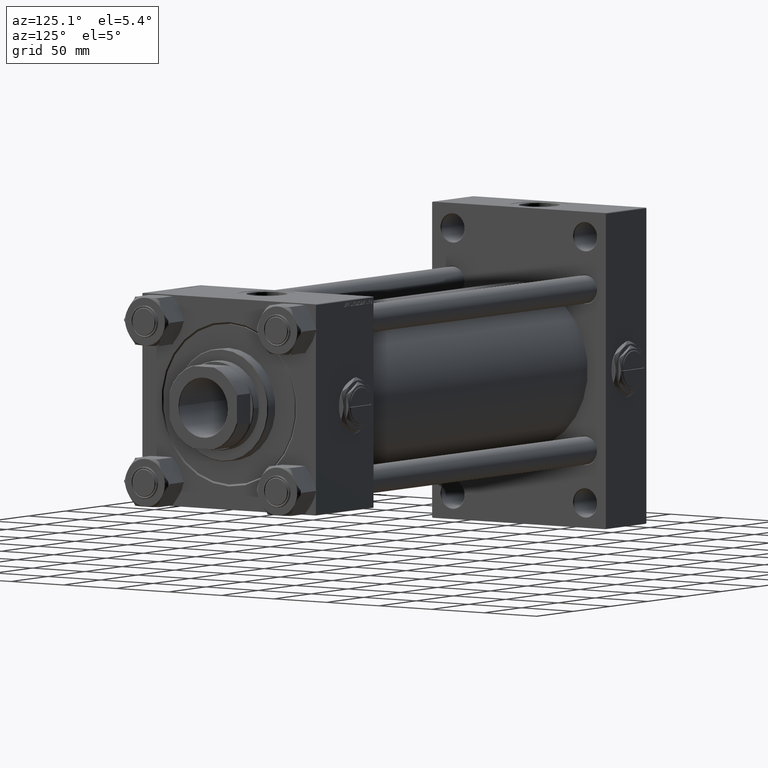
[diagram: clean part render]
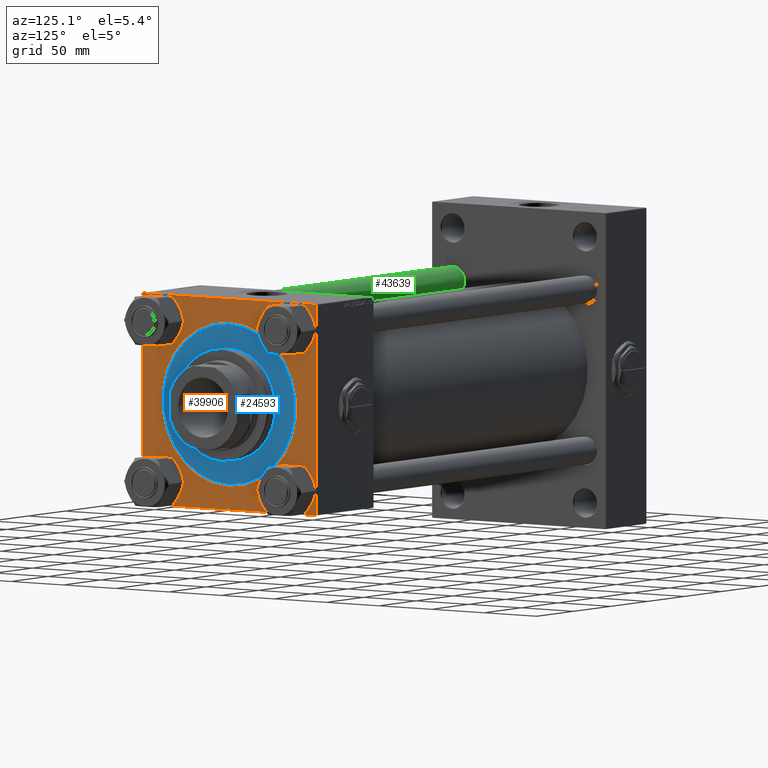
[diagram: same view with three faces highlighted in distinct colors, each labeled with its STEP entity id]
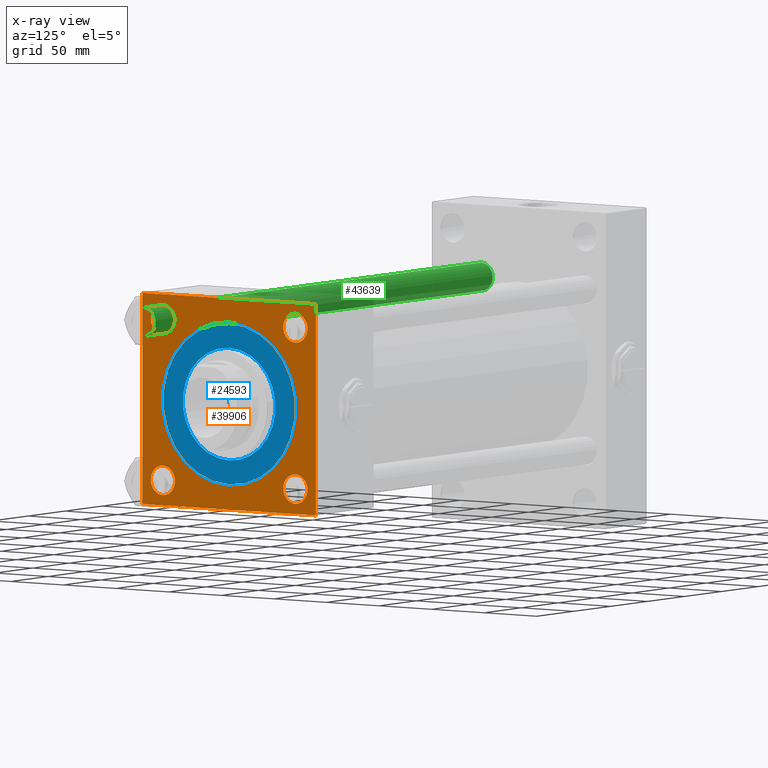
[diagram: x-ray of the same camera — body ghosted, the three highlighted faces saturated]
A machine part, auxiliary view with three faces highlighted in distinct colors.
The next image is the same camera in x-ray (body ghosted, the three faces saturated) — at least one of them is partly hidden behind the body in this view.
Their STEP definitions:

[orange] entity #39906 — the highlighted planar face has unit normal (-1, 0, 0).
#43 = ORIENTED_EDGE ( 'NONE', *, *, #2647, .T. ) ;
#361 = EDGE_CURVE ( 'NONE', #9763, #11775, #30050, .T. ) ;
#590 = ORIENTED_EDGE ( 'NONE', *, *, #41824, .T. ) ;
#904 = VERTEX_POINT ( 'NONE', #26787 ) ;
#1397 = CARTESIAN_POINT ( 'NONE',  ( 447.0000000000000000, 62.95000000000000284, -51.44999999999983231 ) ) ;
#1517 = ORIENTED_EDGE ( 'NONE', *, *, #34671, .T. ) ;
#1520 = DIRECTION ( 'NONE',  ( -1.000000000000000000, -0.000000000000000000, 0.000000000000000000 ) ) ;
#1842 = DIRECTION ( 'NONE',  ( 0.000000000000000000, 0.000000000000000000, 1.000000000000000000 ) ) ;
#1884 = CARTESIAN_POINT ( 'NONE',  ( 447.0000000000000000, 62.95000000000000284, 74.45000000000018758 ) ) ;
#2180 = VERTEX_POINT ( 'NONE', #30304 ) ;
#2388 = CARTESIAN_POINT ( 'NONE',  ( 447.0000000000000000, 0.000000000000000000, 0.000000000000000000 ) ) ;
#2647 = EDGE_CURVE ( 'NONE', #38852, #27404, #30958, .T. ) ;
#3617 = CARTESIAN_POINT ( 'NONE',  ( 447.0000000000000000, 0.000000000000000000, -64.25000000000014211 ) ) ;
#3846 = EDGE_CURVE ( 'NONE', #2180, #51308, #22116, .T. ) ;
#3946 = VERTEX_POINT ( 'NONE', #26381 ) ;
#4507 = CARTESIAN_POINT ( 'NONE',  ( 447.0000000000000000, 82.50000000000001421, -81.99999999999997158 ) ) ;
#5476 = DIRECTION ( 'NONE',  ( 0.000000000000000000, 0.000000000000000000, -1.000000000000000000 ) ) ;
#5604 = VERTEX_POINT ( 'NONE', #32134 ) ;
#5947 = LINE ( 'NONE', #43473, #36726 ) ;
#5954 = ORIENTED_EDGE ( 'NONE', *, *, #26832, .T. ) ;
#6541 = ORIENTED_EDGE ( 'NONE', *, *, #3846, .T. ) ;
#6924 = DIRECTION ( 'NONE',  ( -1.000000000000000000, -0.000000000000000000, 0.000000000000000000 ) ) ;
#7043 = DIRECTION ( 'NONE',  ( -1.000000000000000000, -0.000000000000000000, 0.000000000000000000 ) ) ;
#7189 = VERTEX_POINT ( 'NONE', #4507 ) ;
#8143 = ORIENTED_EDGE ( 'NONE', *, *, #40980, .F. ) ;
#8451 = ORIENTED_EDGE ( 'NONE', *, *, #25012, .T. ) ;
#8616 = ORIENTED_EDGE ( 'NONE', *, *, #15533, .T. ) ;
#9202 = AXIS2_PLACEMENT_3D ( 'NONE', #11235, #28008, #43171 ) ;
#9564 = LINE ( 'NONE', #50786, #45414 ) ;
#9763 = VERTEX_POINT ( 'NONE', #51873 ) ;
#10137 = DIRECTION ( 'NONE',  ( 0.000000000000000000, -1.682156097916903834E-16, -1.000000000000000000 ) ) ;
#10420 = DIRECTION ( 'NONE',  ( 0.000000000000000000, 0.000000000000000000, 1.000000000000000000 ) ) ;
#10912 = DIRECTION ( 'NONE',  ( 0.000000000000000000, 0.000000000000000000, 1.000000000000000000 ) ) ;
#11048 = CARTESIAN_POINT ( 'NONE',  ( 447.0000000000000000, -62.94999999999998153, -62.95000000000001705 ) ) ;
#11235 = CARTESIAN_POINT ( 'NONE',  ( 447.0000000000000000, -62.94999999999998153, 62.95000000000001705 ) ) ;
#11775 = VERTEX_POINT ( 'NONE', #33229 ) ;
#12421 = DIRECTION ( 'NONE',  ( -1.000000000000000000, -0.000000000000000000, 0.000000000000000000 ) ) ;
#12760 = EDGE_CURVE ( 'NONE', #29016, #2180, #17249, .T. ) ;
#12782 = AXIS2_PLACEMENT_3D ( 'NONE', #43907, #47372, #10912 ) ;
#13435 = ORIENTED_EDGE ( 'NONE', *, *, #30039, .F. ) ;
#13487 = CIRCLE ( 'NONE', #43238, 64.25000000000014211 ) ;
#14138 = EDGE_LOOP ( 'NONE', ( #5954, #1517 ) ) ;
#14780 = VECTOR ( 'NONE', #49973, 999.9999999999998863 ) ;
#15533 = EDGE_CURVE ( 'NONE', #32316, #5604, #46367, .T. ) ;
#16499 = LINE ( 'NONE', #24236, #25636 ) ;
#17249 = LINE ( 'NONE', #29765, #14780 ) ;
#17309 = FACE_OUTER_BOUND ( 'NONE', #18124, .T. ) ;
#18124 = EDGE_LOOP ( 'NONE', ( #6541, #34910, #8143, #590, #13435, #46733, #32015, #26900 ) ) ;
#18876 = DIRECTION ( 'NONE',  ( -1.000000000000000000, -0.000000000000000000, 0.000000000000000000 ) ) ;
#19427 = DIRECTION ( 'NONE',  ( 0.000000000000000000, 0.7071067811865573427, -0.7071067811865376918 ) ) ;
#20428 = ORIENTED_EDGE ( 'NONE', *, *, #361, .T. ) ;
#20520 = AXIS2_PLACEMENT_3D ( 'NONE', #23195, #34647, #10420 ) ;
#20946 = VERTEX_POINT ( 'NONE', #3617 ) ;
#21485 = DIRECTION ( 'NONE',  ( 0.000000000000000000, 0.000000000000000000, 1.000000000000000000 ) ) ;
#21552 = FACE_BOUND ( 'NONE', #33821, .T. ) ;
#21918 = CIRCLE ( 'NONE', #29616, 11.50000000000017764 ) ;
#22116 = LINE ( 'NONE', #46868, #25912 ) ;
#22187 = DIRECTION ( 'NONE',  ( -0.000000000000000000, 0.7071067811865081598, 0.7071067811865867636 ) ) ;
#22225 = AXIS2_PLACEMENT_3D ( 'NONE', #40462, #44181, #52685 ) ;
#22960 = CARTESIAN_POINT ( 'NONE',  ( 447.0000000000000000, -82.50000000000000000, -82.00000000000008527 ) ) ;
#23195 = CARTESIAN_POINT ( 'NONE',  ( 447.0000000000000000, -62.94999999999998153, 62.95000000000001705 ) ) ;
#23219 = EDGE_CURVE ( 'NONE', #11775, #9763, #49175, .T. ) ;
#23988 = EDGE_LOOP ( 'NONE', ( #8451, #43 ) ) ;
#24175 = VECTOR ( 'NONE', #19427, 1000.000000000000114 ) ;
#24236 = CARTESIAN_POINT ( 'NONE',  ( 447.0000000000000000, 82.50000000000001421, -82.50000000000002842 ) ) ;
#24962 = LINE ( 'NONE', #41447, #24175 ) ;
#25012 = EDGE_CURVE ( 'NONE', #27404, #38852, #21918, .T. ) ;
#25261 = ORIENTED_EDGE ( 'NONE', *, *, #41073, .T. ) ;
#25541 = EDGE_CURVE ( 'NONE', #50506, #904, #49139, .T. ) ;
#25636 = VECTOR ( 'NONE', #33013, 1000.000000000000000 ) ;
#25912 = VECTOR ( 'NONE', #10137, 1000.000000000000000 ) ;
#26381 = CARTESIAN_POINT ( 'NONE',  ( 447.0000000000000000, 82.00000000000001421, -82.50000000000002842 ) ) ;
#26787 = CARTESIAN_POINT ( 'NONE',  ( 447.0000000000000000, -62.94999999999998153, 74.45000000000003126 ) ) ;
#26832 = EDGE_CURVE ( 'NONE', #20946, #50014, #13487, .T. ) ;
#26900 = ORIENTED_EDGE ( 'NONE', *, *, #12760, .T. ) ;
#27404 = VERTEX_POINT ( 'NONE', #52554 ) ;
#28008 = DIRECTION ( 'NONE',  ( -1.000000000000000000, -0.000000000000000000, 0.000000000000000000 ) ) ;
#28090 = CARTESIAN_POINT ( 'NONE',  ( 447.0000000000000000, 62.95000000000000284, -62.95000000000000284 ) ) ;
#29016 = VERTEX_POINT ( 'NONE', #30325 ) ;
#29530 = CARTESIAN_POINT ( 'NONE',  ( 447.0000000000000000, 81.99999999999995737, 82.50000000000000000 ) ) ;
#29567 = FACE_BOUND ( 'NONE', #14138, .T. ) ;
#29616 = AXIS2_PLACEMENT_3D ( 'NONE', #37681, #12421, #45403 ) ;
#29663 = CARTESIAN_POINT ( 'NONE',  ( 447.0000000000000000, 7.868355684521760090E-15, 64.25000000000014211 ) ) ;
#29765 = CARTESIAN_POINT ( 'NONE',  ( 447.0000000000000000, -82.49999999999997158, 81.99999999999985789 ) ) ;
#30039 = EDGE_CURVE ( 'NONE', #42079, #7189, #41944, .T. ) ;
#30050 = CIRCLE ( 'NONE', #47903, 11.50000000000017764 ) ;
#30078 = CARTESIAN_POINT ( 'NONE',  ( 447.0000000000000000, 0.000000000000000000, 0.000000000000000000 ) ) ;
#30128 = AXIS2_PLACEMENT_3D ( 'NONE', #28090, #31810, #32076 ) ;
#30304 = CARTESIAN_POINT ( 'NONE',  ( 447.0000000000000000, -82.49999999999997158, 81.99999999999985789 ) ) ;
#30325 = CARTESIAN_POINT ( 'NONE',  ( 447.0000000000000000, -81.99999999999985789, 82.49999999999997158 ) ) ;
#30346 = FACE_BOUND ( 'NONE', #50423, .T. ) ;
#30363 = AXIS2_PLACEMENT_3D ( 'NONE', #11048, #7043, #31803 ) ;
#30854 = VERTEX_POINT ( 'NONE', #34229 ) ;
#30958 = CIRCLE ( 'NONE', #30128, 11.50000000000017764 ) ;
#31803 = DIRECTION ( 'NONE',  ( 0.000000000000000000, 0.000000000000000000, 1.000000000000000000 ) ) ;
#31810 = DIRECTION ( 'NONE',  ( -1.000000000000000000, -0.000000000000000000, 0.000000000000000000 ) ) ;
#32015 = ORIENTED_EDGE ( 'NONE', *, *, #46993, .T. ) ;
#32076 = DIRECTION ( 'NONE',  ( 0.000000000000000000, 0.000000000000000000, 1.000000000000000000 ) ) ;
#32134 = CARTESIAN_POINT ( 'NONE',  ( 447.0000000000000000, 62.95000000000000284, 51.44999999999983231 ) ) ;
#32316 = VERTEX_POINT ( 'NONE', #1884 ) ;
#32477 = DIRECTION ( 'NONE',  ( 0.000000000000000000, 0.000000000000000000, 1.000000000000000000 ) ) ;
#32634 = EDGE_CURVE ( 'NONE', #904, #50506, #40054, .T. ) ;
#33013 = DIRECTION ( 'NONE',  ( 0.000000000000000000, -1.000000000000000000, 0.000000000000000000 ) ) ;
#33229 = CARTESIAN_POINT ( 'NONE',  ( 447.0000000000000000, -62.94999999999998153, -74.45000000000020179 ) ) ;
#33230 = CARTESIAN_POINT ( 'NONE',  ( 447.0000000000000000, 62.95000000000000284, 62.95000000000000284 ) ) ;
#33518 = LINE ( 'NONE', #29530, #49732 ) ;
#33819 = FACE_BOUND ( 'NONE', #49291, .T. ) ;
#33821 = EDGE_LOOP ( 'NONE', ( #35299, #20428 ) ) ;
#34229 = CARTESIAN_POINT ( 'NONE',  ( 447.0000000000000000, 81.99999999999995737, 82.50000000000000000 ) ) ;
#34295 = VERTEX_POINT ( 'NONE', #50170 ) ;
#34647 = DIRECTION ( 'NONE',  ( -1.000000000000000000, -0.000000000000000000, 0.000000000000000000 ) ) ;
#34671 = EDGE_CURVE ( 'NONE', #50014, #20946, #49335, .T. ) ;
#34910 = ORIENTED_EDGE ( 'NONE', *, *, #51724, .T. ) ;
#35122 = DIRECTION ( 'NONE',  ( 0.000000000000000000, 0.000000000000000000, 1.000000000000000000 ) ) ;
#35299 = ORIENTED_EDGE ( 'NONE', *, *, #23219, .T. ) ;
#35801 = AXIS2_PLACEMENT_3D ( 'NONE', #30078, #42569, #1842 ) ;
#35841 = CIRCLE ( 'NONE', #22225, 11.50000000000017764 ) ;
#36726 = VECTOR ( 'NONE', #22187, 1000.000000000000000 ) ;
#37246 = CARTESIAN_POINT ( 'NONE',  ( 447.0000000000000000, -62.94999999999998153, 51.45000000000000995 ) ) ;
#37546 = PLANE ( 'NONE',  #35801 ) ;
#37681 = CARTESIAN_POINT ( 'NONE',  ( 447.0000000000000000, 62.95000000000000284, -62.95000000000000284 ) ) ;
#37854 = CARTESIAN_POINT ( 'NONE',  ( 447.0000000000000000, 82.50000000000001421, 82.00000000000000000 ) ) ;
#38070 = FACE_BOUND ( 'NONE', #23988, .T. ) ;
#38572 = DIRECTION ( 'NONE',  ( 0.000000000000000000, -1.000000000000000000, -1.682156097916904081E-16 ) ) ;
#38852 = VERTEX_POINT ( 'NONE', #1397 ) ;
#39906 = ADVANCED_FACE ( 'NONE', ( #21552, #38070, #30346, #33819, #29567, #17309 ), #37546, .F. ) ;
#39983 = ORIENTED_EDGE ( 'NONE', *, *, #32634, .T. ) ;
#40054 = CIRCLE ( 'NONE', #20520, 11.50000000000001066 ) ;
#40462 = CARTESIAN_POINT ( 'NONE',  ( 447.0000000000000000, 62.95000000000000284, 62.95000000000000284 ) ) ;
#40980 = EDGE_CURVE ( 'NONE', #3946, #34295, #16499, .T. ) ;
#41073 = EDGE_CURVE ( 'NONE', #5604, #32316, #35841, .T. ) ;
#41447 = CARTESIAN_POINT ( 'NONE',  ( 447.0000000000000000, -82.00000000000004263, -82.50000000000002842 ) ) ;
#41824 = EDGE_CURVE ( 'NONE', #3946, #7189, #5947, .T. ) ;
#41944 = LINE ( 'NONE', #50180, #45934 ) ;
#42079 = VERTEX_POINT ( 'NONE', #37854 ) ;
#42276 = DIRECTION ( 'NONE',  ( 0.000000000000000000, -0.7071067811865867636, 0.7071067811865081598 ) ) ;
#42569 = DIRECTION ( 'NONE',  ( -1.000000000000000000, -0.000000000000000000, 0.000000000000000000 ) ) ;
#43171 = DIRECTION ( 'NONE',  ( 0.000000000000000000, 0.000000000000000000, 1.000000000000000000 ) ) ;
#43238 = AXIS2_PLACEMENT_3D ( 'NONE', #2388, #18876, #35122 ) ;
#43473 = CARTESIAN_POINT ( 'NONE',  ( 447.0000000000000000, 82.50000000000001421, -81.99999999999997158 ) ) ;
#43907 = CARTESIAN_POINT ( 'NONE',  ( 447.0000000000000000, 0.000000000000000000, 0.000000000000000000 ) ) ;
#44181 = DIRECTION ( 'NONE',  ( -1.000000000000000000, -0.000000000000000000, 0.000000000000000000 ) ) ;
#45403 = DIRECTION ( 'NONE',  ( 0.000000000000000000, 0.000000000000000000, 1.000000000000000000 ) ) ;
#45414 = VECTOR ( 'NONE', #38572, 1000.000000000000000 ) ;
#45934 = VECTOR ( 'NONE', #5476, 1000.000000000000000 ) ;
#46367 = CIRCLE ( 'NONE', #51430, 11.50000000000017764 ) ;
#46733 = ORIENTED_EDGE ( 'NONE', *, *, #49919, .T. ) ;
#46868 = CARTESIAN_POINT ( 'NONE',  ( 447.0000000000000000, -82.49999999999997158, 82.49999999999997158 ) ) ;
#46993 = EDGE_CURVE ( 'NONE', #30854, #29016, #9564, .T. ) ;
#47372 = DIRECTION ( 'NONE',  ( -1.000000000000000000, -0.000000000000000000, 0.000000000000000000 ) ) ;
#47903 = AXIS2_PLACEMENT_3D ( 'NONE', #48707, #6924, #32477 ) ;
#48707 = CARTESIAN_POINT ( 'NONE',  ( 447.0000000000000000, -62.94999999999998153, -62.95000000000001705 ) ) ;
#49139 = CIRCLE ( 'NONE', #9202, 11.50000000000001066 ) ;
#49175 = CIRCLE ( 'NONE', #30363, 11.50000000000017764 ) ;
#49291 = EDGE_LOOP ( 'NONE', ( #50964, #39983 ) ) ;
#49335 = CIRCLE ( 'NONE', #12782, 64.25000000000014211 ) ;
#49732 = VECTOR ( 'NONE', #42276, 1000.000000000000000 ) ;
#49919 = EDGE_CURVE ( 'NONE', #42079, #30854, #33518, .T. ) ;
#49973 = DIRECTION ( 'NONE',  ( -0.000000000000000000, -0.7071067811865574537, -0.7071067811865376918 ) ) ;
#50014 = VERTEX_POINT ( 'NONE', #29663 ) ;
#50170 = CARTESIAN_POINT ( 'NONE',  ( 447.0000000000000000, -82.00000000000004263, -82.50000000000002842 ) ) ;
#50180 = CARTESIAN_POINT ( 'NONE',  ( 447.0000000000000000, 82.50000000000001421, 82.50000000000000000 ) ) ;
#50423 = EDGE_LOOP ( 'NONE', ( #25261, #8616 ) ) ;
#50506 = VERTEX_POINT ( 'NONE', #37246 ) ;
#50786 = CARTESIAN_POINT ( 'NONE',  ( 447.0000000000000000, 82.50000000000001421, 82.50000000000000000 ) ) ;
#50964 = ORIENTED_EDGE ( 'NONE', *, *, #25541, .T. ) ;
#51308 = VERTEX_POINT ( 'NONE', #22960 ) ;
#51430 = AXIS2_PLACEMENT_3D ( 'NONE', #33230, #1520, #21485 ) ;
#51724 = EDGE_CURVE ( 'NONE', #51308, #34295, #24962, .T. ) ;
#51873 = CARTESIAN_POINT ( 'NONE',  ( 447.0000000000000000, -62.94999999999998153, -51.44999999999984652 ) ) ;
#52554 = CARTESIAN_POINT ( 'NONE',  ( 447.0000000000000000, 62.95000000000000284, -74.45000000000018758 ) ) ;
#52685 = DIRECTION ( 'NONE',  ( 0.000000000000000000, 0.000000000000000000, 1.000000000000000000 ) ) ;

[blue] entity #24593 — the highlighted planar face has unit normal (1, 0, 0).
#320 = CARTESIAN_POINT ( 'NONE',  ( 62.75000000000000000, 7.684658664649641591E-15, 28.69999999999999929 ) ) ;
#344 = AXIS2_PLACEMENT_3D ( 'NONE', #37667, #50403, #25437 ) ;
#1752 = VERTEX_POINT ( 'NONE', #28971 ) ;
#2108 = PLANE ( 'NONE',  #46546 ) ;
#3992 = ORIENTED_EDGE ( 'NONE', *, *, #47256, .T. ) ;
#8400 = CARTESIAN_POINT ( 'NONE',  ( 44.00000000000000000, 5.388445916248353619E-15, 28.69999999999999929 ) ) ;
#8942 = DIRECTION ( 'NONE',  ( 0.000000000000000000, 0.000000000000000000, 1.000000000000000000 ) ) ;
#12697 = CARTESIAN_POINT ( 'NONE',  ( 0.000000000000000000, 0.000000000000000000, 28.69999999999999929 ) ) ;
#13450 = VERTEX_POINT ( 'NONE', #320 ) ;
#13715 = DIRECTION ( 'NONE',  ( 1.000000000000000000, 0.000000000000000000, 0.000000000000000000 ) ) ;
#14394 = CARTESIAN_POINT ( 'NONE',  ( 0.000000000000000000, 0.000000000000000000, 28.69999999999999929 ) ) ;
#15621 = AXIS2_PLACEMENT_3D ( 'NONE', #14394, #17870, #18647 ) ;
#17870 = DIRECTION ( 'NONE',  ( 0.000000000000000000, 0.000000000000000000, 1.000000000000000000 ) ) ;
#18342 = CARTESIAN_POINT ( 'NONE',  ( 0.000000000000000000, 0.000000000000000000, 28.69999999999999929 ) ) ;
#18647 = DIRECTION ( 'NONE',  ( 1.000000000000000000, 0.000000000000000000, 0.000000000000000000 ) ) ;
#20310 = ORIENTED_EDGE ( 'NONE', *, *, #34336, .F. ) ;
#20716 = CIRCLE ( 'NONE', #15621, 44.00000000000000000 ) ;
#21172 = CIRCLE ( 'NONE', #39873, 62.75000000000000000 ) ;
#23469 = EDGE_LOOP ( 'NONE', ( #20310, #39347 ) ) ;
#24593 = ADVANCED_FACE ( 'NONE', ( #51059, #38583 ), #2108, .T. ) ;
#25437 = DIRECTION ( 'NONE',  ( 1.000000000000000000, 0.000000000000000000, 0.000000000000000000 ) ) ;
#27109 = EDGE_CURVE ( 'NONE', #37709, #13450, #21172, .T. ) ;
#28971 = CARTESIAN_POINT ( 'NONE',  ( -44.00000000000000000, 0.000000000000000000, 28.69999999999999929 ) ) ;
#29960 = CARTESIAN_POINT ( 'NONE',  ( 0.000000000000000000, 0.000000000000000000, 28.69999999999999929 ) ) ;
#30096 = CIRCLE ( 'NONE', #344, 62.75000000000000000 ) ;
#30600 = DIRECTION ( 'NONE',  ( 1.000000000000000000, 0.000000000000000000, -0.000000000000000000 ) ) ;
#31579 = CARTESIAN_POINT ( 'NONE',  ( -62.75000000000000000, 0.000000000000000000, 28.69999999999999929 ) ) ;
#33453 = DIRECTION ( 'NONE',  ( 1.000000000000000000, 0.000000000000000000, 0.000000000000000000 ) ) ;
#34022 = CIRCLE ( 'NONE', #34847, 44.00000000000000000 ) ;
#34336 = EDGE_CURVE ( 'NONE', #1752, #41520, #34022, .T. ) ;
#34590 = DIRECTION ( 'NONE',  ( 0.000000000000000000, 0.000000000000000000, 1.000000000000000000 ) ) ;
#34847 = AXIS2_PLACEMENT_3D ( 'NONE', #29960, #8942, #13715 ) ;
#37667 = CARTESIAN_POINT ( 'NONE',  ( 0.000000000000000000, 0.000000000000000000, 28.69999999999999929 ) ) ;
#37709 = VERTEX_POINT ( 'NONE', #31579 ) ;
#37969 = DIRECTION ( 'NONE',  ( 0.000000000000000000, 0.000000000000000000, 1.000000000000000000 ) ) ;
#38583 = FACE_OUTER_BOUND ( 'NONE', #39774, .T. ) ;
#38710 = ORIENTED_EDGE ( 'NONE', *, *, #27109, .T. ) ;
#39347 = ORIENTED_EDGE ( 'NONE', *, *, #46755, .F. ) ;
#39774 = EDGE_LOOP ( 'NONE', ( #38710, #3992 ) ) ;
#39873 = AXIS2_PLACEMENT_3D ( 'NONE', #12697, #37969, #33453 ) ;
#41520 = VERTEX_POINT ( 'NONE', #8400 ) ;
#46546 = AXIS2_PLACEMENT_3D ( 'NONE', #18342, #34590, #30600 ) ;
#46755 = EDGE_CURVE ( 'NONE', #41520, #1752, #20716, .T. ) ;
#47256 = EDGE_CURVE ( 'NONE', #13450, #37709, #30096, .T. ) ;
#50403 = DIRECTION ( 'NONE',  ( 0.000000000000000000, 0.000000000000000000, 1.000000000000000000 ) ) ;
#51059 = FACE_BOUND ( 'NONE', #23469, .T. ) ;

[green] entity #43639 — the highlighted cylindrical surface (edge-blend (fillet) strip) has radius 11 mm, axis along (-1, 0, -0).
#613 = DIRECTION ( 'NONE',  ( -0.000000000000000000, -0.000000000000000000, -1.000000000000000000 ) ) ;
#1901 = CARTESIAN_POINT ( 'NONE',  ( 11.00000000000000000, 1.347111479062088405E-15, 457.0000000000000000 ) ) ;
#2648 = VECTOR ( 'NONE', #613, 1000.000000000000000 ) ;
#3823 = CARTESIAN_POINT ( 'NONE',  ( -11.00000000000000000, 0.000000000000000000, 457.0000000000000000 ) ) ;
#7810 = ORIENTED_EDGE ( 'NONE', *, *, #34360, .T. ) ;
#10485 = DIRECTION ( 'NONE',  ( -0.000000000000000000, -0.000000000000000000, -1.000000000000000000 ) ) ;
#11041 = DIRECTION ( 'NONE',  ( 0.000000000000000000, 0.000000000000000000, -1.000000000000000000 ) ) ;
#12049 = VERTEX_POINT ( 'NONE', #16665 ) ;
#12531 = DIRECTION ( 'NONE',  ( -0.000000000000000000, -0.000000000000000000, 1.000000000000000000 ) ) ;
#13997 = CARTESIAN_POINT ( 'NONE',  ( -11.00000000000000000, 0.000000000000000000, 456.5000000000000000 ) ) ;
#14012 = VECTOR ( 'NONE', #18661, 1000.000000000000000 ) ;
#15801 = CARTESIAN_POINT ( 'NONE',  ( 0.000000000000000000, 0.000000000000000000, 457.0000000000000000 ) ) ;
#16276 = CIRCLE ( 'NONE', #31472, 11.00000000000000000 ) ;
#16575 = VERTEX_POINT ( 'NONE', #13997 ) ;
#16665 = CARTESIAN_POINT ( 'NONE',  ( 11.00000000000000000, 1.347111479062088405E-15, 0.4999999999999449329 ) ) ;
#18661 = DIRECTION ( 'NONE',  ( -0.000000000000000000, -0.000000000000000000, -1.000000000000000000 ) ) ;
#18684 = AXIS2_PLACEMENT_3D ( 'NONE', #34209, #11041, #27282 ) ;
#19266 = CYLINDRICAL_SURFACE ( 'NONE', #27444, 11.00000000000000000 ) ;
#22049 = VERTEX_POINT ( 'NONE', #33436 ) ;
#22108 = ORIENTED_EDGE ( 'NONE', *, *, #37636, .T. ) ;
#22267 = VERTEX_POINT ( 'NONE', #44032 ) ;
#22736 = FACE_OUTER_BOUND ( 'NONE', #31837, .T. ) ;
#27282 = DIRECTION ( 'NONE',  ( 1.000000000000000000, 0.000000000000000000, 0.000000000000000000 ) ) ;
#27444 = AXIS2_PLACEMENT_3D ( 'NONE', #15801, #10485, #47224 ) ;
#30275 = CARTESIAN_POINT ( 'NONE',  ( 0.000000000000000000, 0.000000000000000000, 0.4999999999999449329 ) ) ;
#31472 = AXIS2_PLACEMENT_3D ( 'NONE', #30275, #12531, #46500 ) ;
#31837 = EDGE_LOOP ( 'NONE', ( #7810, #32561, #22108, #49224 ) ) ;
#32561 = ORIENTED_EDGE ( 'NONE', *, *, #52276, .T. ) ;
#33436 = CARTESIAN_POINT ( 'NONE',  ( 11.00000000000000000, 1.347111479062088405E-15, 456.5000000000000000 ) ) ;
#34209 = CARTESIAN_POINT ( 'NONE',  ( 0.000000000000000000, 0.000000000000000000, 456.5000000000000000 ) ) ;
#34360 = EDGE_CURVE ( 'NONE', #16575, #22049, #45911, .T. ) ;
#37101 = LINE ( 'NONE', #3823, #2648 ) ;
#37636 = EDGE_CURVE ( 'NONE', #12049, #22267, #16276, .T. ) ;
#38129 = EDGE_CURVE ( 'NONE', #16575, #22267, #37101, .T. ) ;
#38385 = LINE ( 'NONE', #1901, #14012 ) ;
#43639 = ADVANCED_FACE ( 'NONE', ( #22736 ), #19266, .T. ) ;
#44032 = CARTESIAN_POINT ( 'NONE',  ( -11.00000000000000000, 0.000000000000000000, 0.4999999999999449329 ) ) ;
#45911 = CIRCLE ( 'NONE', #18684, 11.00000000000000000 ) ;
#46500 = DIRECTION ( 'NONE',  ( 1.000000000000000000, 0.000000000000000000, 0.000000000000000000 ) ) ;
#47224 = DIRECTION ( 'NONE',  ( -1.000000000000000000, 0.000000000000000000, 0.000000000000000000 ) ) ;
#49224 = ORIENTED_EDGE ( 'NONE', *, *, #38129, .F. ) ;
#52276 = EDGE_CURVE ( 'NONE', #22049, #12049, #38385, .T. ) ;